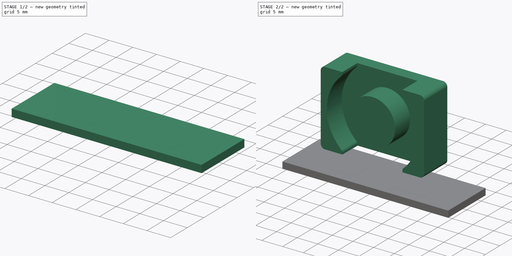
[diagram: build sequence overview — one tinted view per stage of 2, left to right]
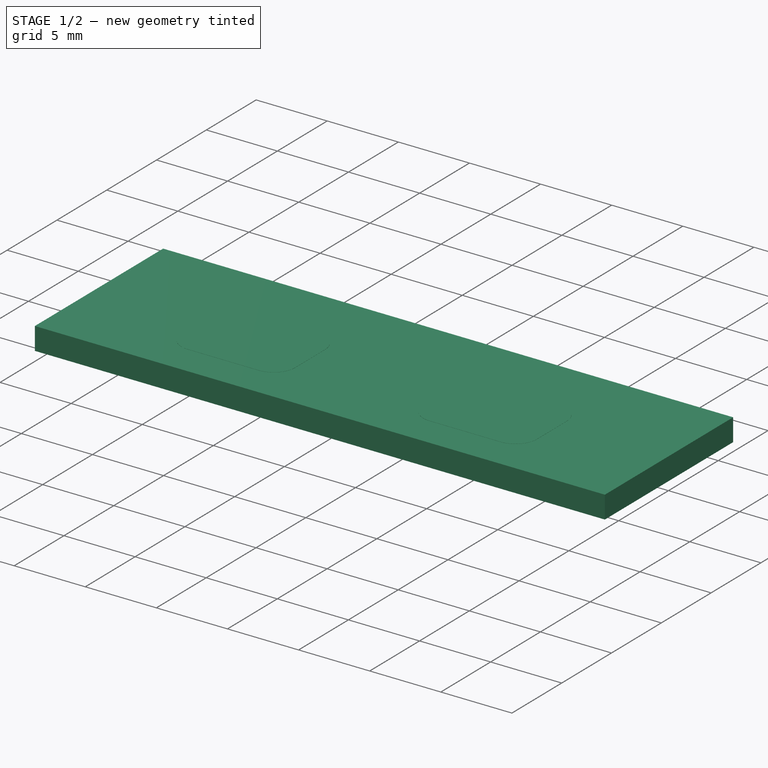
[diagram: stage 1 of 2 — iso view after this stage's code; geometry added in this stage tinted green]
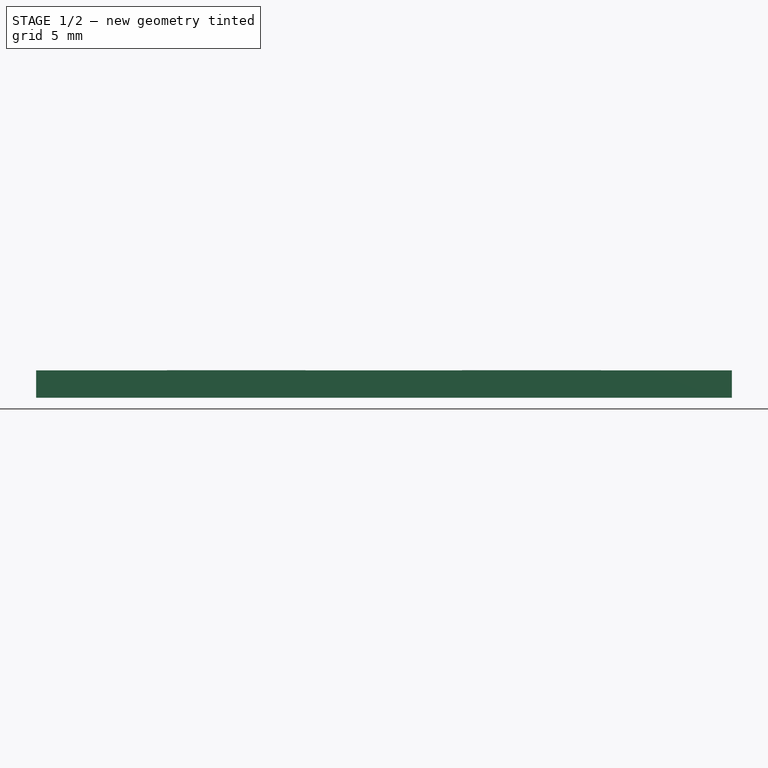
[diagram: stage 1 of 2 — front view after this stage's code; geometry added in this stage tinted green]
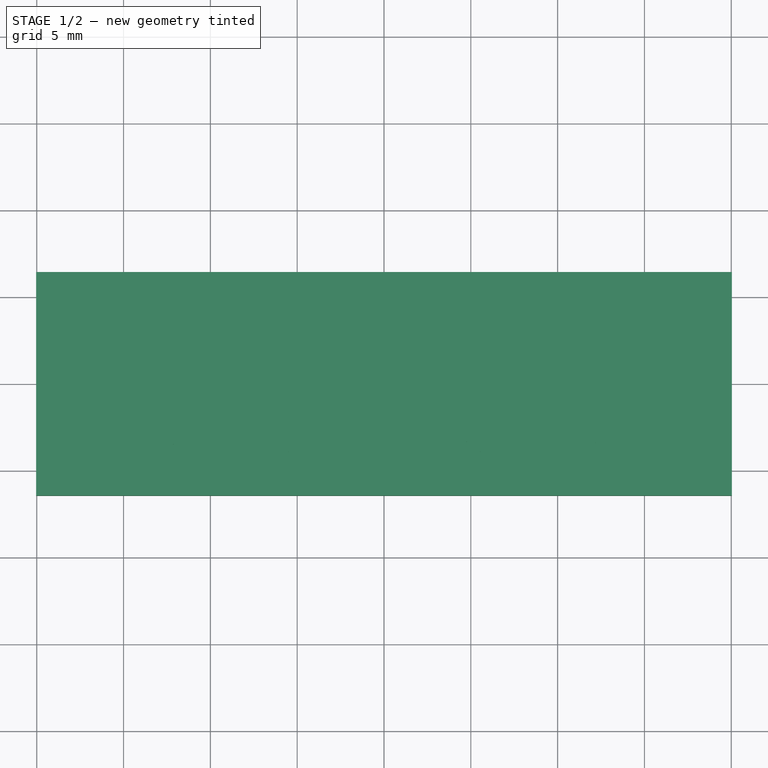
[diagram: stage 1 of 2 — top view after this stage's code; geometry added in this stage tinted green]
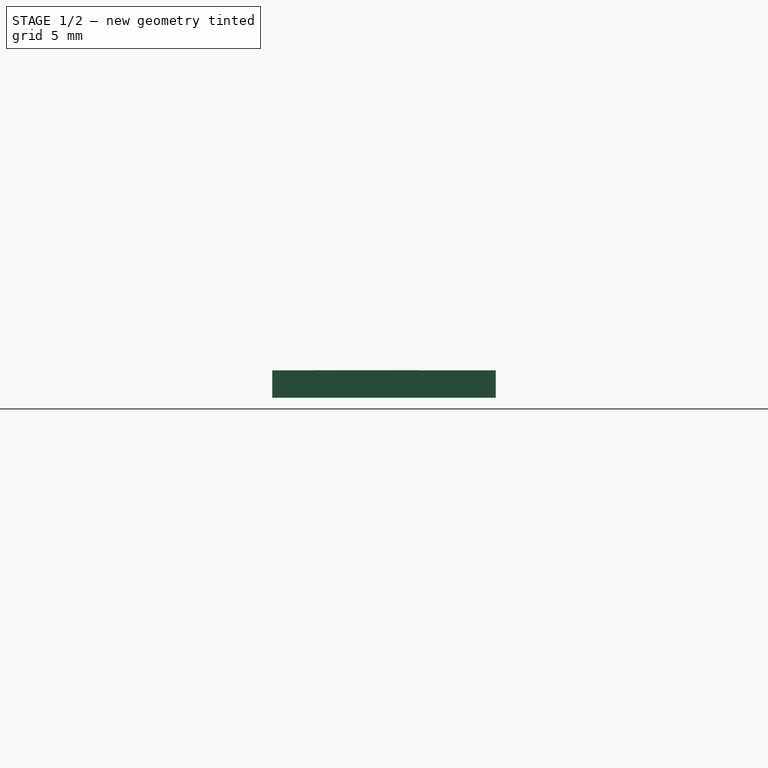
[diagram: stage 1 of 2 — right view after this stage's code; geometry added in this stage tinted green]
FCSTD DOCUMENT  (FreeCAD 0.19R24415 (Git))
Label: eq_core
License: All rights reserved
LicenseURL: http://en.wikipedia.org/wiki/All_rights_reserved
objects: Sketcher::SketchObject×3, Part::FeaturePython×3, Part::Feature×2, PartDesign::FeatureBase×1, PartDesign::Body×1, Part::Sweep×1, App::DocumentObjectGroup×1
note: 11 computed .brp shape members not serialized (recipe doc carries the construction recipe); baked Part::Feature solids carry a one-line shape summary decoded from their .brp

FEATURE [Sketcher::SketchObject] Sketch
  FullyConstrained = false
  MapMode = 5
  Placement = pos=(0,0,0) rot=(1,0,0;1.5708rad)
  Support = -> [XZ_Plane]
  sketch-geometry (37):
    g0-g18: Circle x19 (B-spline internal-alignment scaffolding for g19; pole/knot coordinates omitted)
    g19: BSplineCurve PolesCount=19 KnotsCount=17 Degree=3 IsPeriodic=0
    g20-g36: GeomPoint x17 (B-spline internal-alignment scaffolding for g19; pole/knot coordinates omitted)
  constraints (4):
    c: Weight(g0) = 1
    c: Equal(g0, g1-g18) x18
    c: InternalAlignment(g0-g18 -> g19) x19
    c: InternalAlignment(g20-g36 -> g19) x17
FEATURE [Sketcher::SketchObject] Sketch001
  FullyConstrained = false
  MapMode = 5
  Placement = pos=(0,0,0) rot=(0.57735,0.57735,0.57735;2.0944rad)
  Support = -> [YZ_Plane]
  sketch-geometry (1):
    g0: Circle CenterX=0 CenterY=20.651 CenterZ=0 NormalX=0 NormalY=0 NormalZ=1 AngleXU=0 Radius=0.375
  constraints (2):
    c: PointOnObject(g0,g-2)
    c: Diameter(g0) = 0.75
FEATURE [Sketcher::SketchObject] Sketch002
  FullyConstrained = false
  MapMode = 5
  Placement = pos=(0,0,0) rot=(1,0,0;1.5708rad)
  Support = -> [XZ_Plane]
  sketch-geometry (28):
    g0: ArcOfCircle CenterX=0 CenterY=13 CenterZ=0 NormalX=0 NormalY=0 NormalZ=1 AngleXU=0 Radius=6 StartAngle=1.5708 EndAngle=4.04583
    g1: ArcOfCircle CenterX=0 CenterY=12.6 CenterZ=0 NormalX=0 NormalY=0 NormalZ=1 AngleXU=0 Radius=6.4 StartAngle=4.71239 EndAngle=7.85398
    g2: ArcOfCircle CenterX=0 CenterY=13 CenterZ=0 NormalX=0 NormalY=0 NormalZ=1 AngleXU=0 Radius=6.8 StartAngle=1.5708 EndAngle=4.71239
    g3: ArcOfCircle CenterX=0 CenterY=12.6 CenterZ=0 NormalX=0 NormalY=0 NormalZ=1 AngleXU=0 Radius=7.2 StartAngle=4.71239 EndAngle=7.85398
    g4: ArcOfCircle CenterX=0 CenterY=13 CenterZ=0 NormalX=0 NormalY=0 NormalZ=1 AngleXU=0 Radius=7.6 StartAngle=1.5708 EndAngle=4.71239
    g5: ArcOfCircle CenterX=0 CenterY=12.6 CenterZ=0 NormalX=0 NormalY=0 NormalZ=1 AngleXU=0 Radius=8 StartAngle=4.71239 EndAngle=7.85398
    g6: ArcOfCircle CenterX=0 CenterY=13 CenterZ=0 NormalX=0 NormalY=0 NormalZ=1 AngleXU=0 Radius=8.4 StartAngle=1.5708 EndAngle=4.71239
    g7: ArcOfCircle CenterX=0 CenterY=12.6 CenterZ=0 NormalX=0 NormalY=0 NormalZ=1 AngleXU=0 Radius=8.8 StartAngle=4.71239 EndAngle=7.85398
    g8: ArcOfCircle CenterX=0 CenterY=13 CenterZ=0 NormalX=0 NormalY=0 NormalZ=1 AngleXU=0 Radius=9.2 StartAngle=1.5708 EndAngle=4.71239
    g9: ArcOfCircle CenterX=0 CenterY=12.6 CenterZ=0 NormalX=0 NormalY=0 NormalZ=1 AngleXU=0 Radius=9.6 StartAngle=4.71239 EndAngle=7.85398
    g10: ArcOfCircle CenterX=0 CenterY=13 CenterZ=0 NormalX=0 NormalY=0 NormalZ=1 AngleXU=0 Radius=10 StartAngle=1.5708 EndAngle=4.71239
    g11: ArcOfCircle CenterX=0 CenterY=12.6 CenterZ=0 NormalX=0 NormalY=0 NormalZ=1 AngleXU=0 Radius=10.4 StartAngle=5.34788 EndAngle=7.85398
    g12-g15: Circle x4 (B-spline internal-alignment scaffolding for g16; pole/knot coordinates omitted)
    g16: BSplineCurve PolesCount=4 KnotsCount=2 Degree=3 IsPeriodic=0
    g17: GeomPoint X=6.17317 Y=4.2303 Z=0
    g18: GeomPoint X=11.6169 Y=0.301753 Z=0
    g19-g23: Circle x5 (B-spline internal-alignment scaffolding for g24; pole/knot coordinates omitted)
    g24: BSplineCurve PolesCount=5 KnotsCount=3 Degree=3 IsPeriodic=0
    g25: GeomPoint X=-3.70969 Y=8.28426 Z=0
    g26: GeomPoint X=-2.46213 Y=3.36461 Z=0
    g27: GeomPoint X=-11.8756 Y=0.521699 Z=0
  constraints (41):
    c: PointOnObject(g1,g-2)
    c: PointOnObject(g2,g-2)
    c: Tangent(g1,g0) = -1.5708
    c: Tangent(g2,g1) = -1.5708
    c: Tangent(g3,g2) = -1.5708
    c: Tangent(g11,g10) = -1.5708
    c: Tangent(g10,g9) = -1.5708
    c: Tangent(g9,g8) = -1.5708
    c: Tangent(g8,g7) = -1.5708
    c: Tangent(g7,g6) = -1.5708
    c: Tangent(g5,g4) = -1.5708
    c: Tangent(g4,g3) = -1.5708
    c: Tangent(g6,g5) = -1.5708
    c: DistanceY(g-1,g9) = 3
    c: Coincident(g0,g2)
    c: Coincident(g0,g4)
    c: Coincident(g0,g6)
    c: Coincident(g0,g8)
    c: Coincident(g0,g10)
    c: Coincident(g1,g3)
    c: Coincident(g1,g5)
    c: Coincident(g1,g7)
    c: Coincident(g1,g9)
    c: Coincident(g1,g11)
    c: Distance(g9,g7) = 0.8
    c: Radius(g0) = 6
    c: Weight(g12) = 1
    c: Equal(g12,g13)
    c: Equal(g12,g14)
    c: Equal(g12,g15)
    c: InternalAlignment(g12-g15 -> g16) x4
    c: InternalAlignment(g17,g16)
    c: InternalAlignment(g18,g16)
    c: Tangent(g16,g11) = 1.5708
    c: Coincident(g24,g0)
    c: Weight(g19) = 1
    c: Equal(g19, g20-g23) x4
    c: InternalAlignment(g19-g23 -> g24) x5
    c: InternalAlignment(g25,g24)
    c: InternalAlignment(g26,g24)
    c: InternalAlignment(g27,g24)
FEATURE [PartDesign::Body] Body
  BaseFeature = -> Shape001
  Group = -> [BaseFeature,Sketch,Sketch001,Sketch002]
  Origin = -> Origin
  Tip = -> BaseFeature
FEATURE [Part::Sweep] Sweep001
  Frenet = false
  Sections = -> [Sketch001]
  Solid = false
  Spine = -> Sketch002
  Transition = 1
FEATURE [Part::FeaturePython] FCrtYd_lines  label="FCrtYd"  # a2plus imported part (geometry in sourceFile) (typed FeaturePython)
  fixedPosition = true
FEATURE [Part::FeaturePython] TopPads  # a2plus imported part (geometry in sourceFile) (typed FeaturePython)
  fixedPosition = true
FEATURE [Part::FeaturePython] newPCB  label="Pcb"  # a2plus imported part (geometry in sourceFile) (typed FeaturePython)
  fixedPosition = true
FEATURE [App::DocumentObjectGroup] inductor_core_25x18_fp
  Group = -> [FCrtYd_lines,TopPads,newPCB]
FEATURE [Part::Feature] Shape  label="eq_core"
  shape: bbox 24.99 x 8.001 x 24.76 mm, 39 faces (baked)
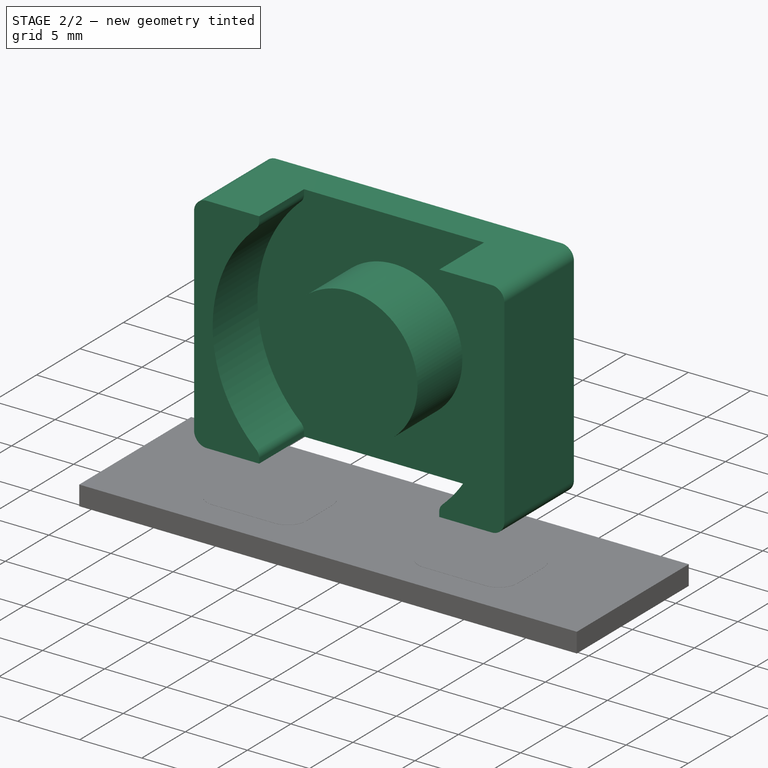
[diagram: stage 2 of 2 — iso view after this stage's code; geometry added in this stage tinted green]
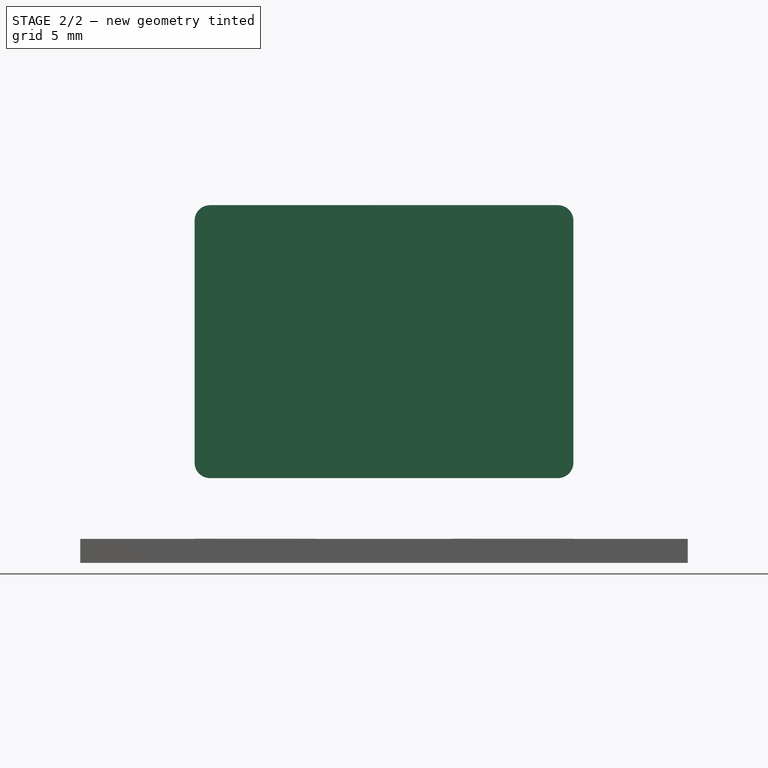
[diagram: stage 2 of 2 — front view after this stage's code; geometry added in this stage tinted green]
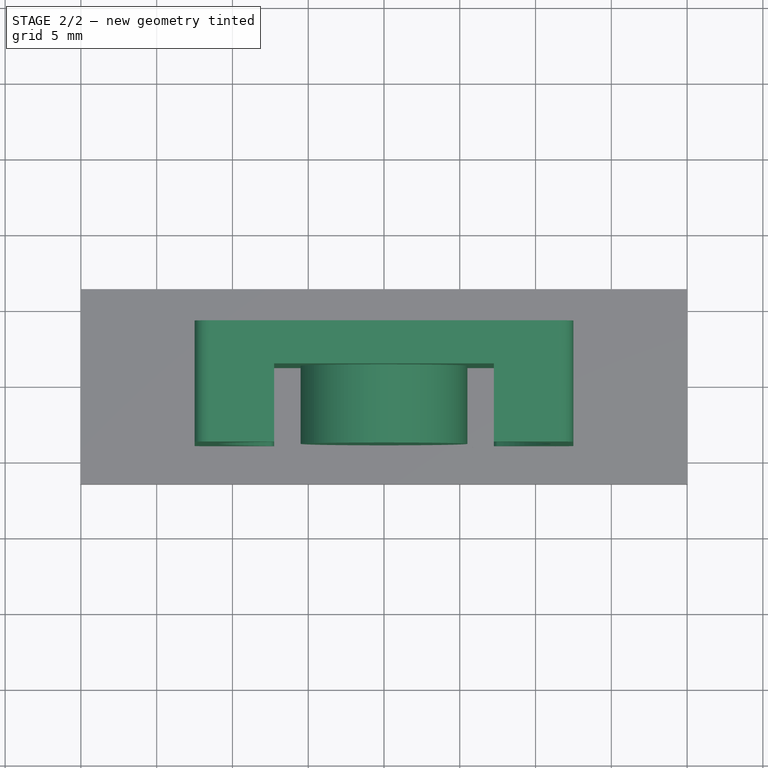
[diagram: stage 2 of 2 — top view after this stage's code; geometry added in this stage tinted green]
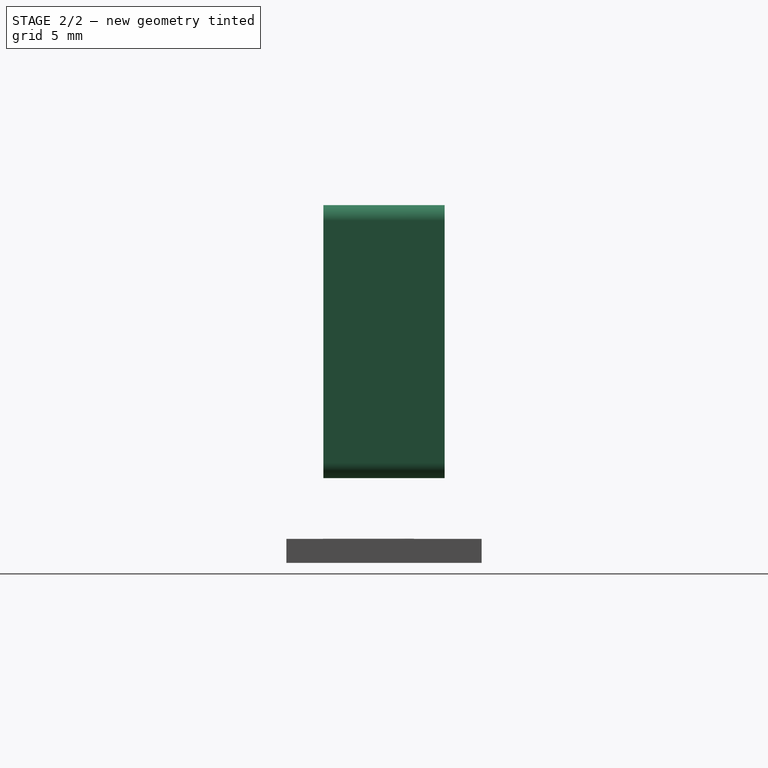
[diagram: stage 2 of 2 — right view after this stage's code; geometry added in this stage tinted green]
FEATURE [Part::Feature] Shape001  label="9567250802"
  shape: bbox 24.99 x 8.001 x 18.01 mm, 25 faces (baked)
FEATURE [PartDesign::FeatureBase] BaseFeature
  BaseFeature = -> Shape001
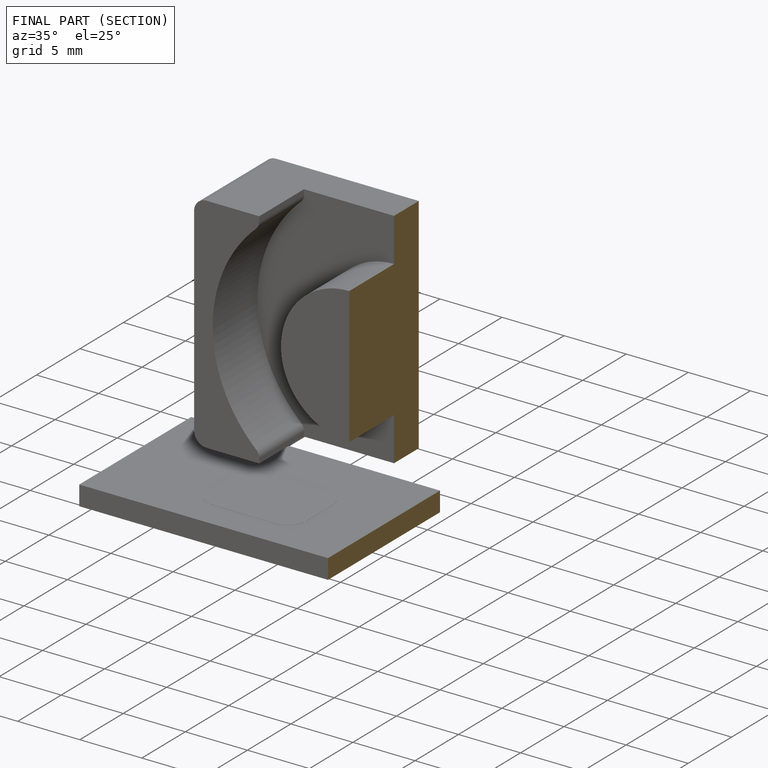
[diagram: finished part — half-section view (interior)]
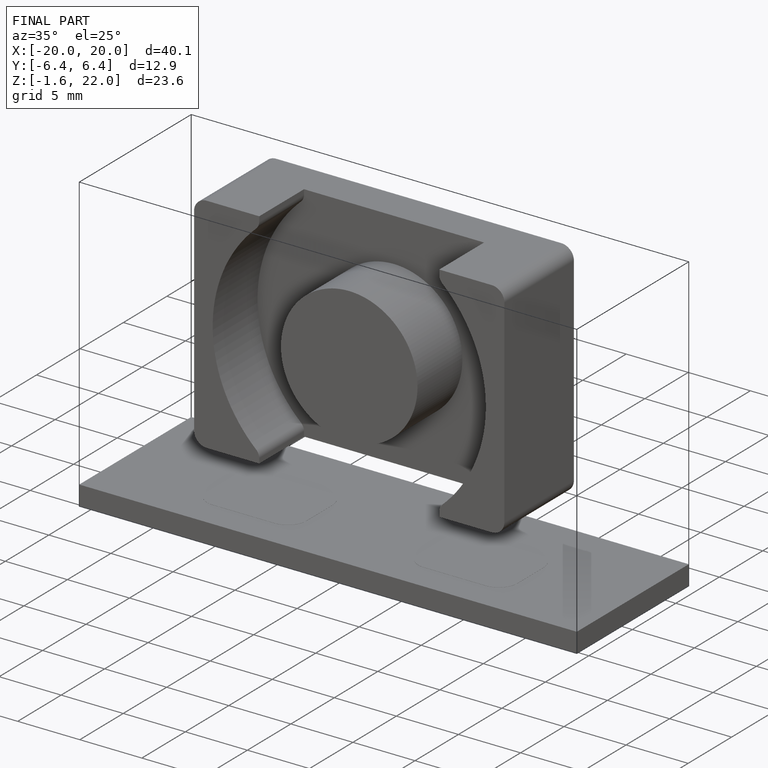
[diagram: finished part — iso view with bounding-box wireframe]
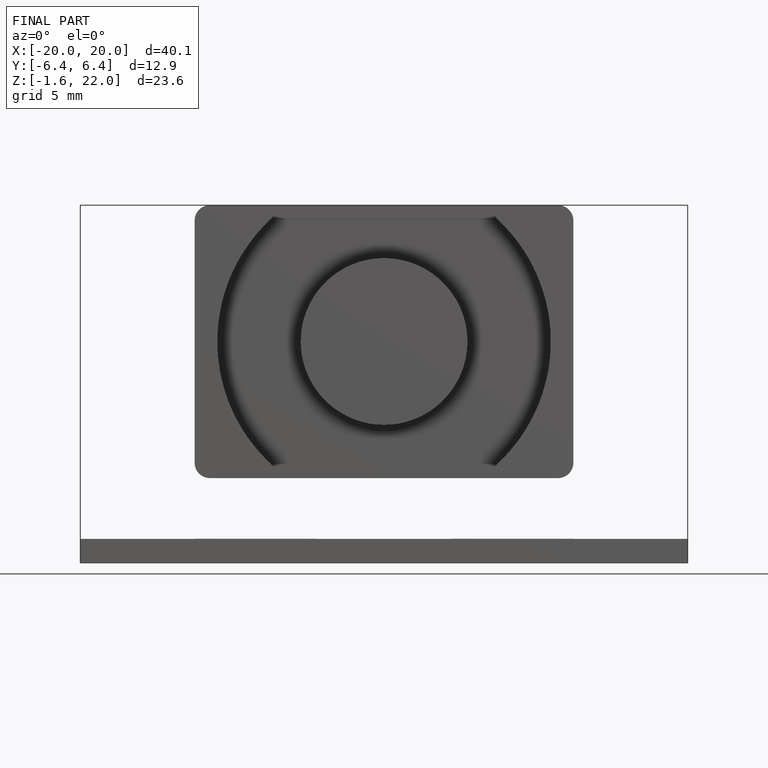
[diagram: finished part — front view with bounding-box wireframe]
